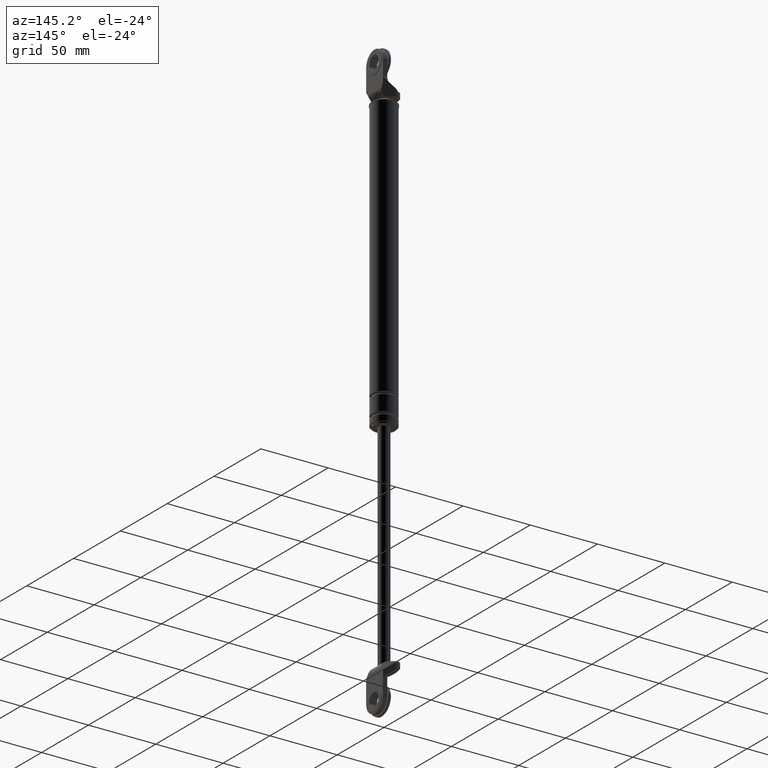
[diagram: clean part render]
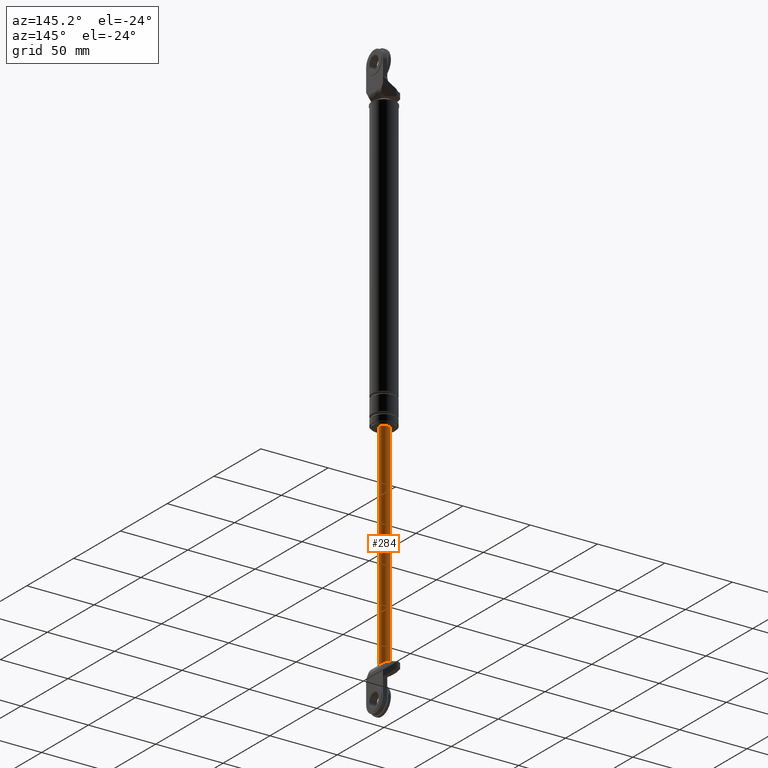
[diagram: same view with one face highlighted and labeled with its STEP entity id]
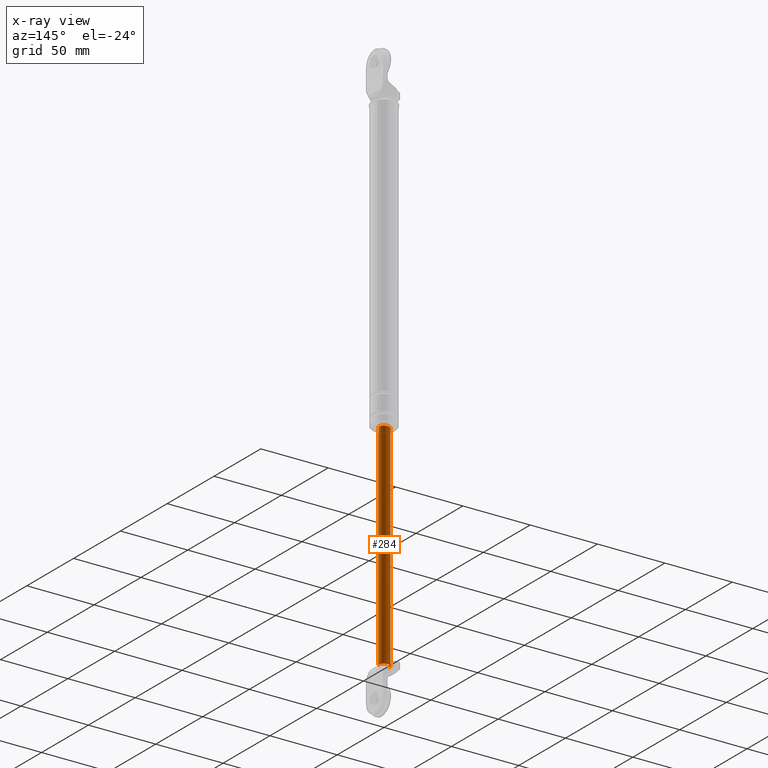
[diagram: x-ray of the same camera — body ghosted, the highlighted face saturated]
A machine part, auxiliary view. The second image highlights one B-rep face of the part: STEP entity #284.
The next image is the same camera in x-ray: the body ghosted, the highlighted face saturated — about 0% of this face is hidden behind the body in this view.
In plain terms, the highlighted cylindrical surface (edge-blend (fillet) strip) has radius 4 mm, axis along (0, 0, 1).
Its self-contained STEP definition (entity closure, byte-faithful):
#284=ADVANCED_FACE('',(#1097),#1096,.T.);
#1096=CYLINDRICAL_SURFACE('',#1755,4.00000000000E+000);
#1097=FACE_OUTER_BOUND('',#1756,.T.);
#1752=CARTESIAN_POINT('',(0.00000000000E+000,3.58204186421E-014,0.00000000000E+000));
#1753=DIRECTION('',(-0.00000000000E+000,-0.00000000000E+000,1.00000000000E+000));
#1754=DIRECTION('',(1.00000000000E+000,-0.00000000000E+000,-0.00000000000E+000));
#1755=AXIS2_PLACEMENT_3D('',#1752,#1753,#1754);
#1756=EDGE_LOOP('',(#2148,#2149,#2150,#2151,#2152));
#2148=ORIENTED_EDGE('',*,*,#2337,.F.);
#2149=ORIENTED_EDGE('',*,*,#2354,.F.);
#2150=ORIENTED_EDGE('',*,*,#2340,.F.);
#2151=ORIENTED_EDGE('',*,*,#2351,.F.);
#2152=ORIENTED_EDGE('',*,*,#2355,.T.);
#2337=EDGE_CURVE('',#3549,#3550,#3551,.T.);
#2340=EDGE_CURVE('',#3309,#3570,#3571,.T.);
#2351=EDGE_CURVE('',#3633,#3309,#3640,.T.);
#2354=EDGE_CURVE('',#3570,#3549,#3658,.T.);
#2355=EDGE_CURVE('',#3633,#3550,#3664,.T.);
#3309=VERTEX_POINT('',#4259);
#3549=VERTEX_POINT('',#4397);
#3550=VERTEX_POINT('',#4398);
#3551=CIRCLE('',#4402,4.00000000000E+000);
#3570=VERTEX_POINT('',#4411);
#3571=CIRCLE('',#4415,4.00000000000E+000);
#3633=VERTEX_POINT('',#4449);
#3640=CIRCLE('',#4457,4.00000000000E+000);
#3658=(BOUNDED_CURVE() B_SPLINE_CURVE(1,(#4462,#4463),.UNSPECIFIED.,.F.,.F.) B_SPLINE_CURVE_WITH_KNOTS((2,2),(5.58659216388E-002,9.44134078355E-001),.UNSPECIFIED.) CURVE() GEOMETRIC_REPRESENTATION_ITEM() RATIONAL_B_SPLINE_CURVE((1.00000000000E+000,1.00000000000E+000)) REPRESENTATION_ITEM('') );
#3664=(BOUNDED_CURVE() B_SPLINE_CURVE(1,(#4464,#4465),.UNSPECIFIED.,.F.,.F.) B_SPLINE_CURVE_WITH_KNOTS((2,2),(5.58659217877E-002,9.44134078212E-001),.UNSPECIFIED.) CURVE() GEOMETRIC_REPRESENTATION_ITEM() RATIONAL_B_SPLINE_CURVE((7.50000000000E-001,7.50000000000E-001)) REPRESENTATION_ITEM('') );
#4259=CARTESIAN_POINT('',(2.00000000000E+000,3.46410161514E+000,-2.88000015000E+002));
#4397=CARTESIAN_POINT('',(4.00000000000E+000,3.58204186421E-014,-1.29000015000E+002));
#4398=CARTESIAN_POINT('',(-4.00000000000E+000,3.64153152077E-014,-1.29000015000E+002));
#4399=CARTESIAN_POINT('',(0.00000000000E+000,3.58204186421E-014,-1.29000015000E+002));
#4400=DIRECTION('',(0.00000000000E+000,0.00000000000E+000,1.00000000000E+000));
#4401=DIRECTION('',(1.00000000000E+000,-1.22460635382E-016,0.00000000000E+000));
#4402=AXIS2_PLACEMENT_3D('',#4399,#4400,#4401);
#4411=CARTESIAN_POINT('',(4.00000000000E+000,3.62672854711E-014,-2.88000015000E+002));
#4412=CARTESIAN_POINT('',(0.00000000000E+000,3.58204186421E-014,-2.88000015000E+002));
#4413=DIRECTION('',(0.00000000000E+000,0.00000000000E+000,-1.00000000000E+000));
#4414=DIRECTION('',(5.00000000000E-001,8.66025403784E-001,0.00000000000E+000));
#4415=AXIS2_PLACEMENT_3D('',#4412,#4413,#4414);
#4449=CARTESIAN_POINT('',(-4.00000000000E+000,4.01078405739E-014,-2.88000015000E+002));
#4454=CARTESIAN_POINT('',(0.00000000000E+000,3.58204186421E-014,-2.88000015000E+002));
#4455=DIRECTION('',(0.00000000000E+000,0.00000000000E+000,-1.00000000000E+000));
#4456=DIRECTION('',(1.00000000000E+000,-0.00000000000E+000,-0.00000000000E+000));
#4457=AXIS2_PLACEMENT_3D('',#4454,#4455,#4456);
#4462=CARTESIAN_POINT('',(4.00000000000E+000,3.58204186421E-014,-2.88000015027E+002));
#4463=CARTESIAN_POINT('',(4.00000000000E+000,3.58204186421E-014,-1.29000014975E+002));
#4464=CARTESIAN_POINT('',(-4.00000000000E+000,3.58231962612E-014,-2.88000015000E+002));
#4465=CARTESIAN_POINT('',(-4.00000000000E+000,3.58231962612E-014,-1.29000015000E+002));